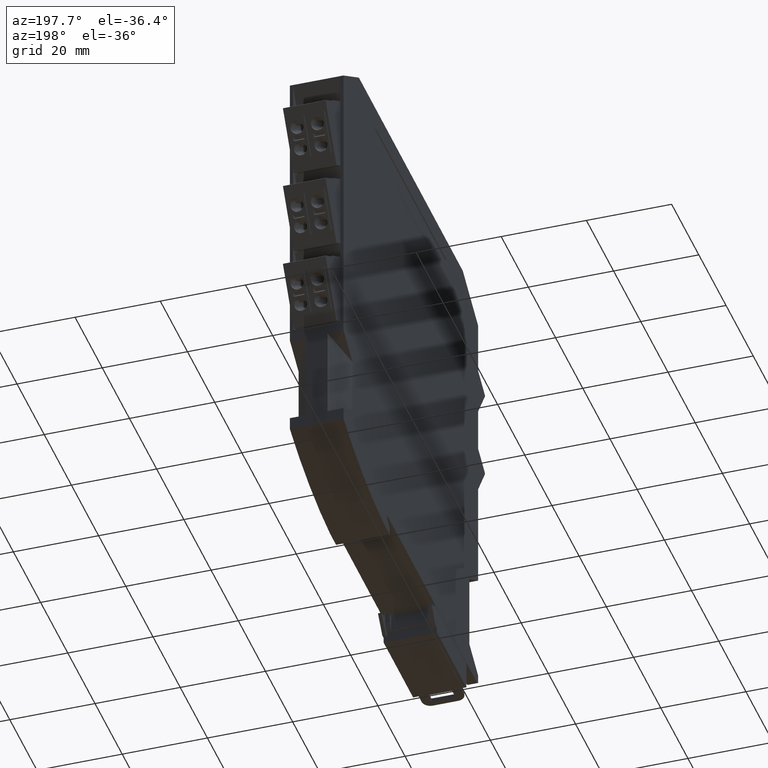
[diagram: clean part render]
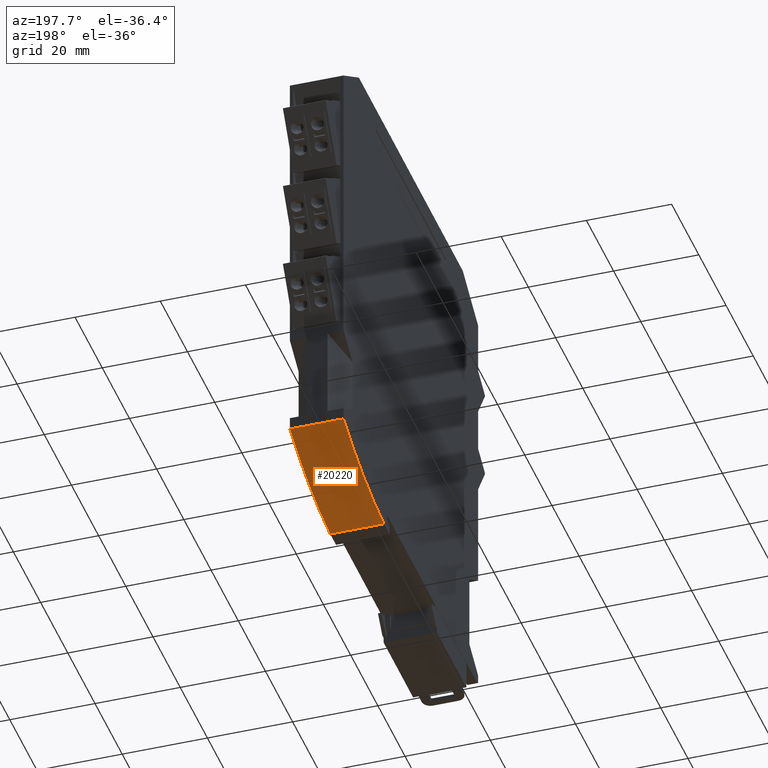
[diagram: same view with one face highlighted and labeled with its STEP entity id]
A machine part, auxiliary view. The second image highlights one B-rep face of the part: STEP entity #20220.
In plain terms, the highlighted cylindrical surface (partial cylindrical patch) has radius 80 mm, axis along (1, 0, -0).
Its self-contained STEP definition (entity closure, byte-faithful):
#9840=CARTESIAN_POINT('',(-6.65920651954366E-11,99.000000000385,
11.0077156022));
#9850=VERTEX_POINT('',#9840);
#9880=CARTESIAN_POINT('',(-6.65902888385972E-11,99.0000000003476,
11.0077156020774));
#9890=DIRECTION('',(1.,9.69667423635606E-13,-2.21443425005644E-30));
#9900=VECTOR('',#9890,1.);
#9910=LINE('',#9880,#9900);
#9920=CARTESIAN_POINT('',(12.599999222621,99.0000000003849,
11.0077156020901));
#9930=VERTEX_POINT('',#9920);
#9940=EDGE_CURVE('',#9850,#9930,#9910,.T.);
#19900=CARTESIAN_POINT('',(-3.16831005875429E-11,63.0000000003012,
82.4499999999972));
#19910=DIRECTION('',(1.,9.69667423635606E-13,-2.21443425005644E-30));
#19920=DIRECTION('',(9.69667423635606E-13,-1.,-1.29579546715093E-34));
#19930=AXIS2_PLACEMENT_3D('',#19900,#19910,#19920);
#19940=CYLINDRICAL_SURFACE('',#19930,79.9999999999787);
#19950=CARTESIAN_POINT('',(-3.78115316834737E-11,69.3196123301776,
2.70000000001809));
#19960=DIRECTION('',(1.,9.69667423635606E-13,-2.21443425005644E-30));
#19970=VECTOR('',#19960,1.);
#19980=LINE('',#19950,#19970);
#19990=CARTESIAN_POINT('',(-3.78115316834737E-11,69.3196123301776,
2.70000000001809));
#20000=VERTEX_POINT('',#19990);
#20010=CARTESIAN_POINT('',(12.5999992226559,69.3196123301898,
2.70000000001809));
#20020=VERTEX_POINT('',#20010);
#20030=EDGE_CURVE('',#20000,#20020,#19980,.T.);
#20040=ORIENTED_EDGE('',*,*,#20030,.F.);
#20050=CARTESIAN_POINT('',(12.5999992226559,63.0000000003134,
82.4499999999972));
#20060=DIRECTION('',(1.,9.69667423635606E-13,-2.21443425005644E-30));
#20070=DIRECTION('',(9.69667423635606E-13,-1.,-1.29579546715093E-34));
#20080=AXIS2_PLACEMENT_3D('',#20050,#20060,#20070);
#20090=CIRCLE('',#20080,79.9999999999787);
#20100=EDGE_CURVE('',#20020,#9930,#20090,.T.);
#20110=ORIENTED_EDGE('',*,*,#20100,.F.);
#20120=ORIENTED_EDGE('',*,*,#9940,.T.);
#20130=CARTESIAN_POINT('',(-3.16848769443823E-11,63.0000000003012,
82.4499999999972));
#20140=DIRECTION('',(1.,9.69667423635606E-13,-2.21443425005644E-30));
#20150=DIRECTION('',(9.69667423635606E-13,-1.,-1.29579546715093E-34));
#20160=AXIS2_PLACEMENT_3D('',#20130,#20140,#20150);
#20170=CIRCLE('',#20160,79.9999999999787);
#20180=EDGE_CURVE('',#20000,#9850,#20170,.T.);
#20190=ORIENTED_EDGE('',*,*,#20180,.T.);
#20200=EDGE_LOOP('',(#20190,#20120,#20110,#20040));
#20210=FACE_OUTER_BOUND('',#20200,.T.);
#20220=ADVANCED_FACE('',(#20210),#19940,.T.);